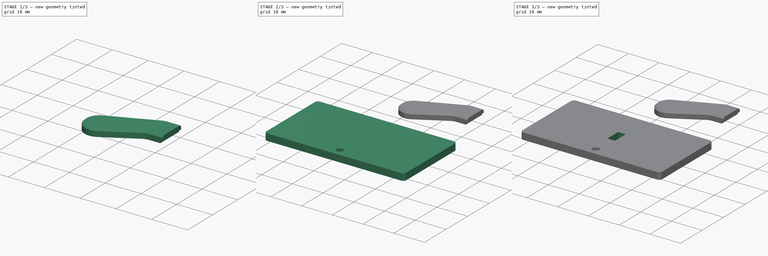
[diagram: build sequence overview — one tinted view per stage of 3, left to right]
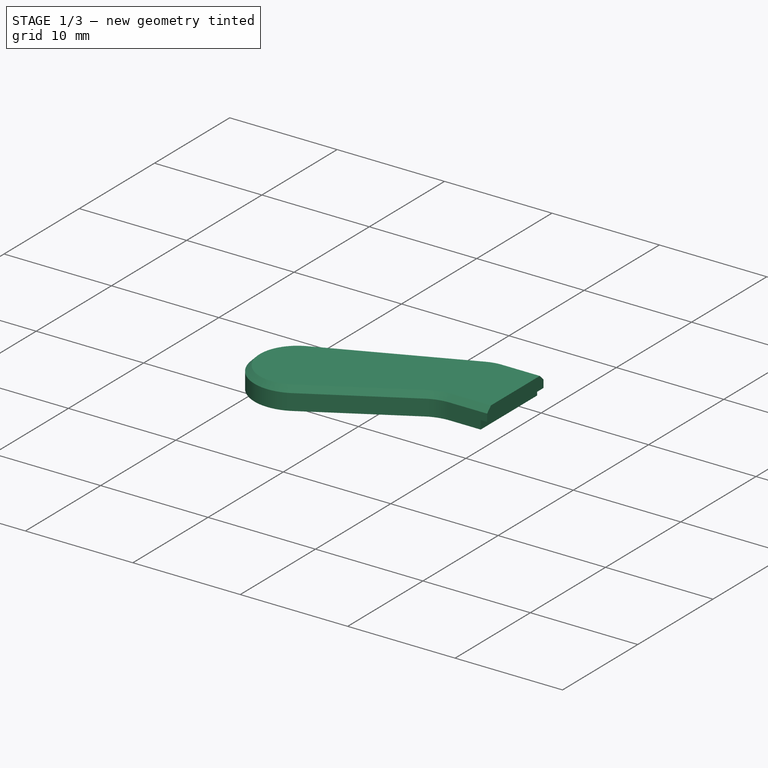
[diagram: stage 1 of 3 — iso view after this stage's code; geometry added in this stage tinted green]
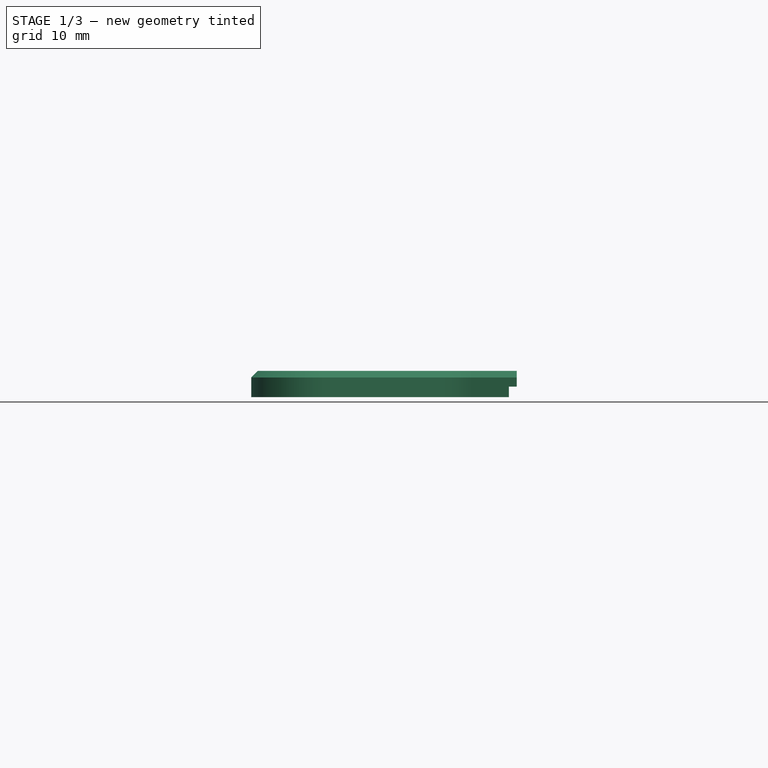
[diagram: stage 1 of 3 — front view after this stage's code; geometry added in this stage tinted green]
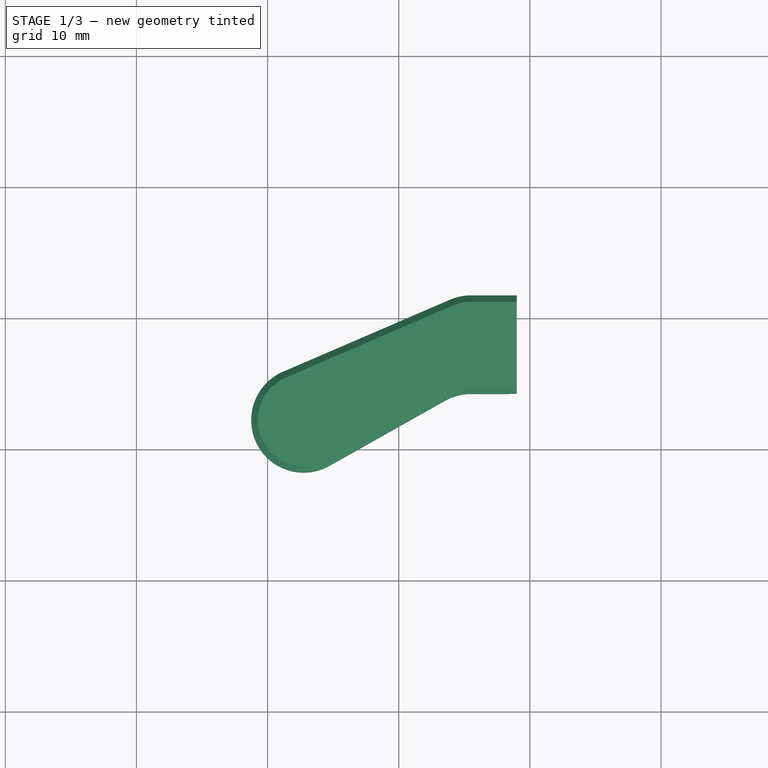
[diagram: stage 1 of 3 — top view after this stage's code; geometry added in this stage tinted green]
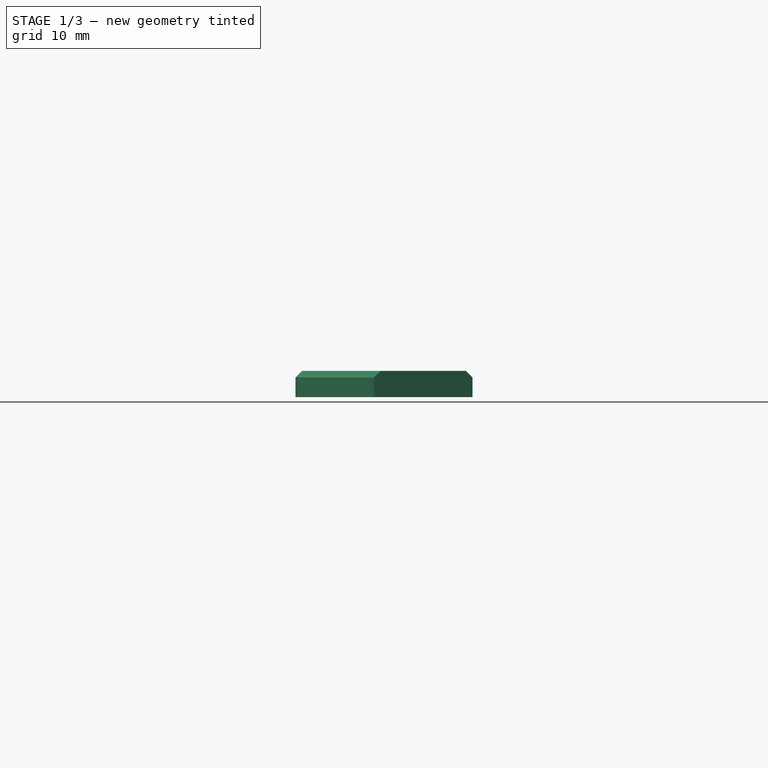
[diagram: stage 1 of 3 — right view after this stage's code; geometry added in this stage tinted green]
FCSTD DOCUMENT  (FreeCAD 0.21R33771 (Git))
Label: drawings
License: All rights reserved
LicenseURL: http://en.wikipedia.org/wiki/All_rights_reserved
objects: Sketcher::SketchObject×4, PartDesign::SubShapeBinder×4, PartDesign::Pad×4, PartDesign::Pocket×2, PartDesign::Body×2, PartDesign::Groove×1, PartDesign::Chamfer×1
note: 26 computed .brp shape members not serialized (recipe doc carries the construction recipe); baked Part::Feature solids carry a one-line shape summary decoded from their .brp

FEATURE [PartDesign::Body] Body  label="Cover"
  Group = -> [Binder003,Binder001,Binder002,Binder,Pad,Pad001,Pad002,Sketch001,Groove,Pocket]
  Origin = -> Origin
  Placement = pos=(0,0,0) rot=(1,0,0;3.14159rad)
  Tip = -> Pocket
FEATURE [Sketcher::SketchObject] Sketch002  label="CapOuterSketch"
  FullyConstrained = true
  MapMode = 5
  Support = -> [XY_Plane005]
  expr: .Constraints.X1 = <<OutlineSketch>>.Constraints.X1
  expr: .Constraints.Y1 = <<OutlineSketch>>.Constraints.H3 / 2
  sketch-geometry (9):
    g0: ArcOfCircle CenterX=22.75 CenterY=12.25 CenterZ=0 NormalX=0 NormalY=0 NormalZ=1 AngleXU=0 Radius=4 StartAngle=1.97805 EndAngle=5.22537
    g1: LineSegment StartX=39 StartY=21.75 StartZ=0 EndX=39 EndY=14.25 EndZ=0
    g2: LineSegment StartX=39 StartY=21.75 StartZ=0 EndX=35.5 EndY=21.75 EndZ=0
    g3: LineSegment StartX=39 StartY=14.25 StartZ=0 EndX=35.5 EndY=14.25 EndZ=0
    g4: GeomPoint X=39 Y=18 Z=0
    g5: LineSegment StartX=33.9156 StartY=21.4228 StartZ=0 EndX=21.1656 EndY=15.9228 EndZ=0
    g6: LineSegment StartX=33.5369 StartY=13.7351 StartZ=0 EndX=24.7131 EndY=8.76486 EndZ=0
    g7: ArcOfCircle CenterX=35.5 CenterY=17.75 CenterZ=0 NormalX=0 NormalY=0 NormalZ=1 AngleXU=0 Radius=4 StartAngle=1.5708 EndAngle=1.97805
    g8: ArcOfCircle CenterX=35.5 CenterY=10.25 CenterZ=0 NormalX=0 NormalY=0 NormalZ=1 AngleXU=0 Radius=4 StartAngle=1.5708 EndAngle=2.08378
  constraints (22):
    c: Diameter(g0) = 8  'D1'
    c: DistanceX(g0) = 22.75  'X1'
    c: DistanceY(g0) = 12.25  'Y1'
    c: Vertical(g1)
    c: Coincident(g1,g2)
    c: Horizontal(g2)
    c: Coincident(g1,g3)
    c: Horizontal(g3)
    c: Symmetric(g1,g1,g4)
    c: DistanceY(g4) = 18  'Y3'
    c: DistanceY(g1,g1) = 7.5  'H3'
    c: Tangent(g2,g7) = -1.5708
    c: Tangent(g5,g7) = -1.5708
    c: Tangent(g3,g8) = -1.5708
    c: Tangent(g6,g8) = -1.5708
    c: Vertical(g3,g2)
    c: Equal(g7,g8)
    c: Equal(g8,g0)
    c: DistanceX(g7) = 35.5  'X2'
    c: DistanceX(g1) = 39  'X3'
    c: Tangent(g0,g6) = 1.5708
    c: Tangent(g0,g5) = -1.5708
FEATURE [PartDesign::Pad] Pad003  label="OuterPad"
  Direction = (0,0,1)
  Length = 2
  Length2 = 10
  Profile = -> Sketch002
  ReferenceAxis = -> Sketch002 [N_Axis]
  Type = 0
FEATURE [Sketcher::SketchObject] Sketch003  label="CapInnerSketch"
  FullyConstrained = true
  MapMode = 5
  Support = -> [XY_Plane005]
  expr: .Constraints.X1 = <<CapOuterSketch>>.Constraints.X1
  expr: .Constraints.X2 = <<CapOuterSketch>>.Constraints.X2
  expr: .Constraints.Y1 = <<CapOuterSketch>>.Constraints.Y1
  expr: Constraints[20] = <<OutlineSketch>>.Constraints.H4
  expr: Constraints[21] = <<OutlineSketch>>.Constraints.W4
  expr: Constraints[47] = <<CapOuterSketch>>.Constraints.X3
  expr: Constraints[48] = <<CapOuterSketch>>.Constraints.Y3
  expr: Constraints[49] = <<CapOuterSketch>>.Constraints.H3
  sketch-geometry (21):
    g0: ArcOfCircle CenterX=22 CenterY=14.25 CenterZ=0 NormalX=0 NormalY=0 NormalZ=1 AngleXU=0 Radius=0.5 StartAngle=1.5708 EndAngle=3.14159
    g1: LineSegment StartX=22 StartY=14.75 StartZ=0 EndX=23.5 EndY=14.75 EndZ=0
    g2: ArcOfCircle CenterX=23.5 CenterY=14.25 CenterZ=0 NormalX=0 NormalY=0 NormalZ=1 AngleXU=0 Radius=0.5 StartAngle=0 EndAngle=1.5708
    g3: LineSegment StartX=24 StartY=14.25 StartZ=0 EndX=24 EndY=10.25 EndZ=0
    g4: ArcOfCircle CenterX=23.5 CenterY=10.25 CenterZ=0 NormalX=0 NormalY=0 NormalZ=1 AngleXU=0 Radius=0.5 StartAngle=4.71239 EndAngle=6.28319
    g5: LineSegment StartX=23.5 StartY=9.75 StartZ=0 EndX=22 EndY=9.75 EndZ=0
    g6: ArcOfCircle CenterX=22 CenterY=10.25 CenterZ=0 NormalX=0 NormalY=0 NormalZ=1 AngleXU=0 Radius=0.5 StartAngle=3.14159 EndAngle=4.71239
    g7: LineSegment StartX=21.5 StartY=10.25 StartZ=0 EndX=21.5 EndY=14.25 EndZ=0
    g8: GeomPoint X=21.5 Y=14.75 Z=0
    g9: GeomPoint X=24 Y=9.75 Z=0
    g10: GeomPoint X=22.75 Y=12.25 Z=0
    g11: LineSegment StartX=34.65 StartY=18.87 StartZ=0 EndX=34.65 EndY=16.17 EndZ=0
    g12: LineSegment StartX=34.65 StartY=16.17 StartZ=0 EndX=36.35 EndY=16.17 EndZ=0
    g13: LineSegment StartX=36.35 StartY=16.17 StartZ=0 EndX=36.35 EndY=18.87 EndZ=0
    g14: LineSegment StartX=36.35 StartY=18.87 StartZ=0 EndX=34.65 EndY=18.87 EndZ=0
    g15: GeomPoint X=35.5 Y=17.52 Z=0
    g16: LineSegment StartX=38.4 StartY=21.75 StartZ=0 EndX=38.4 EndY=14.25 EndZ=0
    g17: LineSegment StartX=38.4 StartY=14.25 StartZ=0 EndX=39.6 EndY=14.25 EndZ=0
    g18: LineSegment StartX=39.6 StartY=14.25 StartZ=0 EndX=39.6 EndY=21.75 EndZ=0
    g19: LineSegment StartX=39.6 StartY=21.75 StartZ=0 EndX=38.4 EndY=21.75 EndZ=0
    g20: GeomPoint X=39 Y=18 Z=0
  constraints (51):
    c: Tangent(g0,g1) = 1.5708
    c: Tangent(g1,g2) = 1.5708
    c: Tangent(g2,g3) = 1.5708
    c: Tangent(g3,g4) = 1.5708
    c: Tangent(g4,g5) = 1.5708
    c: Tangent(g5,g6) = 1.5708
    c: Tangent(g6,g7) = 1.5708
    c: Tangent(g7,g0) = 1.5708
    c: Horizontal(g1)
    c: Horizontal(g5)
    c: Vertical(g3)
    c: Vertical(g7)
    c: Equal(g0,g2)
    c: Equal(g2,g4)
    c: Equal(g4,g6)
    c: PointOnObject(g8,g1)
    c: PointOnObject(g8,g7)
    c: PointOnObject(g9,g3)
    c: PointOnObject(g9,g5)
    c: Symmetric(g0,g4,g10)
    c: DistanceY(g4,g1) = 5
    c: DistanceX(g6,g3) = 2.5
    c: DistanceX(g10) = 22.75  'X1'
    c: DistanceY(g10) = 12.25  'Y1'
    c: Radius(g2) = 0.5
    c: Coincident(g11,g12)
    c: Coincident(g12,g13)
    c: Coincident(g13,g14)
    c: Coincident(g14,g11)
    c: Horizontal(g12)
    c: Horizontal(g14)
    c: Vertical(g11)
    c: Vertical(g13)
    c: Symmetric(g12,g11,g15)
    c: DistanceX(g12,g12) = 1.7
    c: DistanceY(g13,g13) = 2.7
    c: DistanceX(g15) = 35.5  'X2'
    c: DistanceY(g15) = 17.52  'Y2'
    c: Coincident(g16,g17)
    c: Coincident(g17,g18)
    c: Coincident(g18,g19)
    c: Coincident(g19,g16)
    c: Horizontal(g17)
    c: Horizontal(g19)
    c: Vertical(g16)
    c: Vertical(g18)
    c: Symmetric(g17,g16,g20)
    c: DistanceX(g20) = 39
    c: DistanceY(g20) = 18
    c: DistanceY(g18,g18) = 7.5
    c: DistanceX(g17,g17) = 1.2
FEATURE [PartDesign::Pocket] Pocket001  label="InnerPocket"
  BaseFeature = -> Pad003
  Direction = (0,0,-1)
  Length = 0.8
  Length2 = 5
  Profile = -> Sketch003
  ReferenceAxis = -> Sketch003 [N_Axis]
  Reversed = true
  Type = 0
FEATURE [PartDesign::Chamfer] Chamfer  label="CapChamfer"
  Angle = 45
  Base = -> Pocket001 [Edge5]
  BaseFeature = -> Pocket001
  ChamferType = 0
  FlipDirection = false
  Size = 0.5
  Size2 = 1
  SupportTransform = false
  UseAllEdges = false
FEATURE [PartDesign::Body] Body001  label="Cap"
  Group = -> [Sketch002,Pad003,Sketch003,Pocket001,Chamfer]
  Origin = -> Origin005
  Placement = pos=(0,0,0) rot=(1,0,0;3.14159rad)
  Tip = -> Chamfer
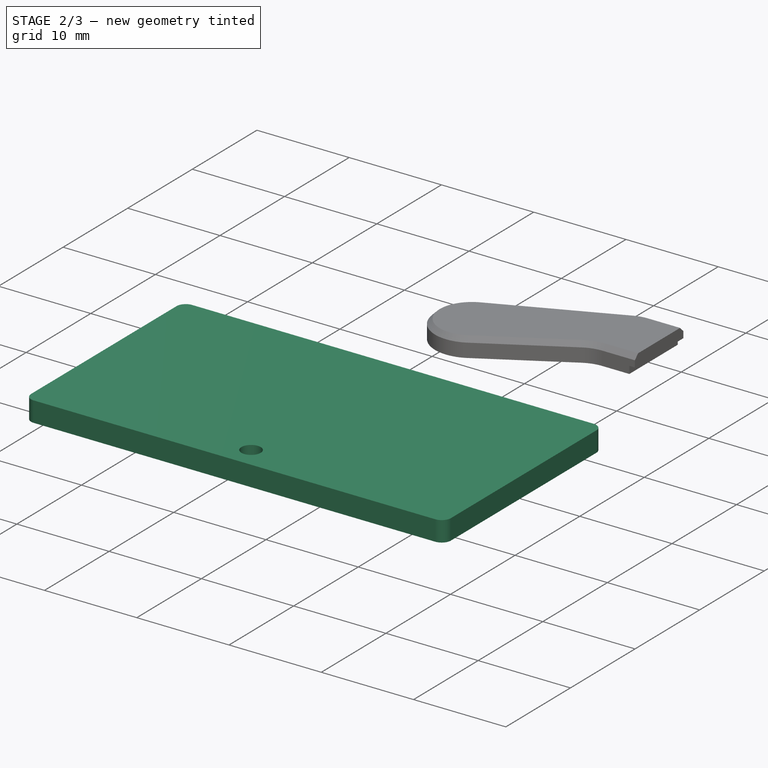
[diagram: stage 2 of 3 — iso view after this stage's code; geometry added in this stage tinted green]
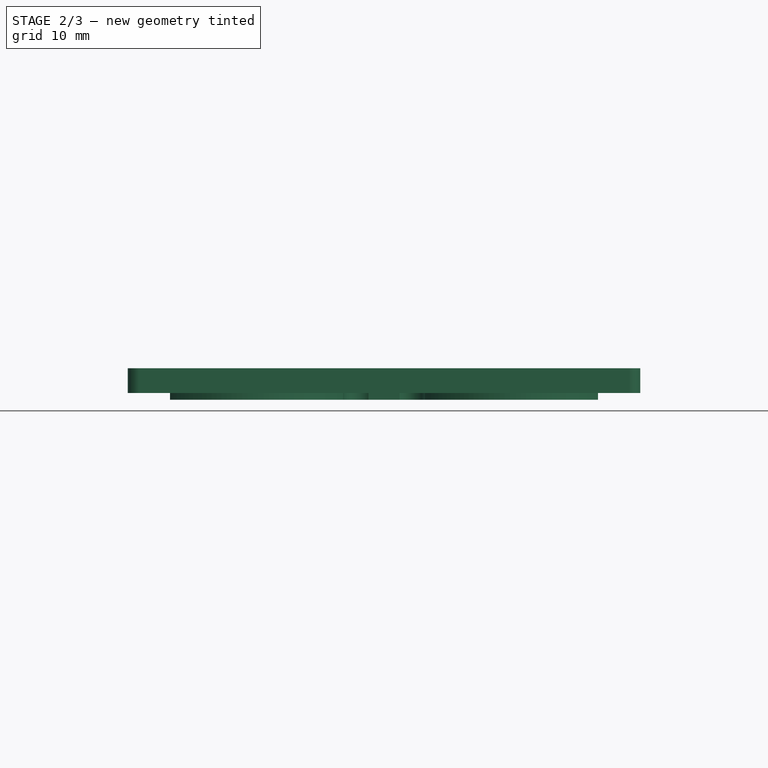
[diagram: stage 2 of 3 — front view after this stage's code; geometry added in this stage tinted green]
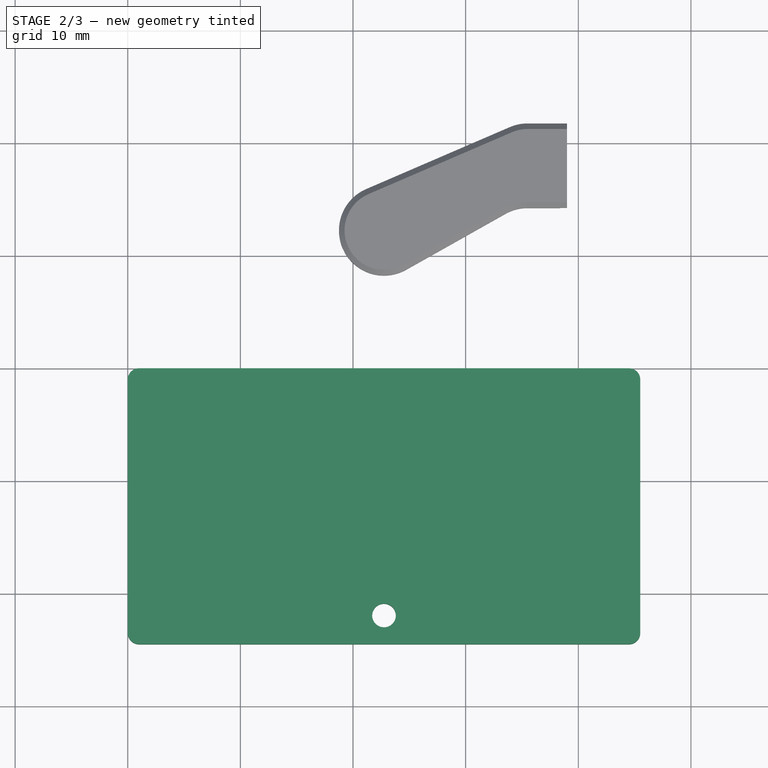
[diagram: stage 2 of 3 — top view after this stage's code; geometry added in this stage tinted green]
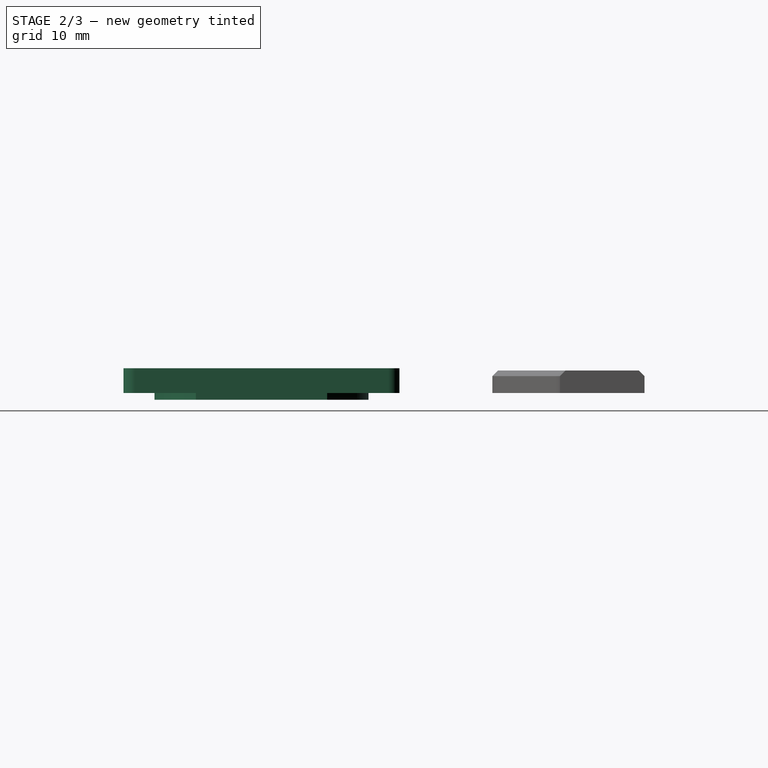
[diagram: stage 2 of 3 — right view after this stage's code; geometry added in this stage tinted green]
FEATURE [Sketcher::SketchObject] Sketch  label="OutlineSketch"
  FullyConstrained = true
  MapMode = 5
  sketch-geometry (60):
    g0: LineSegment StartX=3.75 StartY=2.75 StartZ=0 EndX=41.75 EndY=2.75 EndZ=0
    g1: LineSegment StartX=41.75 StartY=2.75 StartZ=0 EndX=41.75 EndY=21.75 EndZ=0
    g2: LineSegment StartX=41.75 StartY=21.75 StartZ=0 EndX=3.75 EndY=21.75 EndZ=0
    g3: LineSegment StartX=3.75 StartY=21.75 StartZ=0 EndX=3.75 EndY=2.75 EndZ=0
    g4: ArcOfCircle CenterX=11.25 CenterY=12.25 CenterZ=0 NormalX=0 NormalY=0 NormalZ=1 AngleXU=0 Radius=9.5 StartAngle=0.593942 EndAngle=2.48075
    g5: ArcOfCircle CenterX=11.25 CenterY=12.25 CenterZ=0 NormalX=0 NormalY=0 NormalZ=1 AngleXU=0 Radius=9.5 StartAngle=3.80244 EndAngle=5.68924
    g6: LineSegment StartX=21.3789 StartY=16.25 StartZ=0 EndX=24.1211 EndY=16.25 EndZ=0
    g7: LineSegment StartX=21.3789 StartY=8.25 StartZ=0 EndX=24.1211 EndY=8.25 EndZ=0
    g8: ArcOfCircle CenterX=34.25 CenterY=12.25 CenterZ=0 NormalX=0 NormalY=0 NormalZ=1 AngleXU=0 Radius=9.5 StartAngle=0.660845 EndAngle=2.54765
    g9: ArcOfCircle CenterX=34.25 CenterY=12.25 CenterZ=0 NormalX=0 NormalY=0 NormalZ=1 AngleXU=0 Radius=9.5 StartAngle=3.73553 EndAngle=5.62234
    g10: LineSegment StartX=41.75 StartY=18.081 StartZ=0 EndX=41.75 EndY=6.41905 EndZ=0
    g11: LineSegment StartX=3.75 StartY=18.081 StartZ=0 EndX=3.75 EndY=6.41905 EndZ=0
    g12: ArcOfCircle CenterX=11.25 CenterY=12.25 CenterZ=0 NormalX=0 NormalY=0 NormalZ=1 AngleXU=0 Radius=9.5 StartAngle=5.84858 EndAngle=6.71779
    g13: ArcOfCircle CenterX=34.25 CenterY=12.25 CenterZ=0 NormalX=0 NormalY=0 NormalZ=1 AngleXU=0 Radius=9.5 StartAngle=2.70699 EndAngle=3.5762
    g14: LineSegment StartX=1 StartY=0 StartZ=0 EndX=44.5 EndY=0 EndZ=0
    g15: LineSegment StartX=45.5 StartY=1 StartZ=0 EndX=45.5 EndY=23.5 EndZ=0
    g16: LineSegment StartX=44.5 StartY=24.5 StartZ=0 EndX=1 EndY=24.5 EndZ=0
    g17: LineSegment StartX=0 StartY=23.5 StartZ=0 EndX=0 EndY=1 EndZ=0
    g18: ArcOfCircle CenterX=1 CenterY=1 CenterZ=0 NormalX=0 NormalY=0 NormalZ=1 AngleXU=0 Radius=1 StartAngle=3.14159 EndAngle=4.71239
    g19: ArcOfCircle CenterX=1 CenterY=23.5 CenterZ=0 NormalX=0 NormalY=0 NormalZ=1 AngleXU=0 Radius=1 StartAngle=1.5708 EndAngle=3.14159
    g20: ArcOfCircle CenterX=44.5 CenterY=23.5 CenterZ=0 NormalX=0 NormalY=0 NormalZ=1 AngleXU=0 Radius=1 StartAngle=-9e-16 EndAngle=1.5708
    g21: ArcOfCircle CenterX=44.5 CenterY=1 CenterZ=0 NormalX=0 NormalY=0 NormalZ=1 AngleXU=0 Radius=1 StartAngle=4.71239 EndAngle=6.28319
    g22: GeomPoint X=22.75 Y=12.25 Z=0
    g23: LineSegment StartX=21.3789 StartY=16.25 StartZ=0 EndX=19.8668 EndY=16.25 EndZ=0
    g24: ArcOfCircle CenterX=11.25 CenterY=12.25 CenterZ=0 NormalX=0 NormalY=0 NormalZ=1 AngleXU=0 Radius=9.5 StartAngle=0.434606 EndAngle=0.593942
    g25: LineSegment StartX=25.6332 StartY=16.25 StartZ=0 EndX=24.1211 EndY=16.25 EndZ=0
    g26: LineSegment StartX=21.3789 StartY=8.25 StartZ=0 EndX=19.8668 EndY=8.25 EndZ=0
    g27: LineSegment StartX=24.1211 StartY=8.25 StartZ=0 EndX=25.6332 EndY=8.25 EndZ=0
    g28: ArcOfCircle CenterX=34.25 CenterY=12.25 CenterZ=0 NormalX=0 NormalY=0 NormalZ=1 AngleXU=0 Radius=9.5 StartAngle=2.54765 EndAngle=2.70699
    g29: ArcOfCircle CenterX=34.25 CenterY=12.25 CenterZ=0 NormalX=0 NormalY=0 NormalZ=1 AngleXU=0 Radius=9.5 StartAngle=3.5762 EndAngle=3.73553
    g30: ArcOfCircle CenterX=11.25 CenterY=12.25 CenterZ=0 NormalX=0 NormalY=0 NormalZ=1 AngleXU=0 Radius=9.5 StartAngle=5.68924 EndAngle=5.84858
    g31: ArcOfCircle CenterX=20.6229 CenterY=6.95447 CenterZ=0 NormalX=0 NormalY=0 NormalZ=1 AngleXU=0 Radius=1.5 StartAngle=1.04254 EndAngle=3.15558
    g32: ArcOfCircle CenterX=24.8771 CenterY=6.95447 CenterZ=0 NormalX=0 NormalY=0 NormalZ=1 AngleXU=0 Radius=1.5 StartAngle=6.2692 EndAngle=8.38224
    g33: ArcOfCircle CenterX=24.8771 CenterY=17.5455 CenterZ=0 NormalX=0 NormalY=0 NormalZ=1 AngleXU=0 Radius=1.5 StartAngle=4.18413 EndAngle=6.29717
    g34: ArcOfCircle CenterX=20.6229 CenterY=17.5455 CenterZ=0 NormalX=0 NormalY=0 NormalZ=1 AngleXU=0 Radius=1.5 StartAngle=3.12761 EndAngle=5.24065
    g35: LineSegment StartX=19.123 StartY=17.5665 StartZ=0 EndX=19.8668 EndY=16.25 EndZ=0
    g36: LineSegment StartX=25.6332 StartY=16.25 StartZ=0 EndX=26.377 EndY=17.5665 EndZ=0
    g37: LineSegment StartX=25.6332 StartY=8.25 StartZ=0 EndX=26.377 EndY=6.93349 EndZ=0
    g38: LineSegment StartX=19.8668 StartY=8.25 StartZ=0 EndX=19.123 EndY=6.93349 EndZ=0
    g39: Circle CenterX=22.75 CenterY=21.95 CenterZ=0 NormalX=0 NormalY=0 NormalZ=1 AngleXU=0 Radius=1.05
    g40: Circle CenterX=22.75 CenterY=21.95 CenterZ=0 NormalX=0 NormalY=0 NormalZ=1 AngleXU=0 Radius=1.75
    g41: LineSegment StartX=21.25 StartY=1.1 StartZ=0 EndX=24.25 EndY=1.1 EndZ=0
    g42: LineSegment StartX=24.25 StartY=1.1 StartZ=0 EndX=24.25 EndY=-1.7 EndZ=0
    g43: LineSegment StartX=24.25 StartY=-1.7 StartZ=0 EndX=21.25 EndY=-1.7 EndZ=0
    g44: LineSegment StartX=21.25 StartY=-1.7 StartZ=0 EndX=21.25 EndY=1.1 EndZ=0
    g45: GeomPoint X=22.75 Y=1.1 Z=0
    g46: LineSegment StartX=4.75 StartY=1.1 StartZ=0 EndX=7.75 EndY=1.1 EndZ=0
    g47: LineSegment StartX=7.75 StartY=1.1 StartZ=0 EndX=7.75 EndY=-1.7 EndZ=0
    g48: LineSegment StartX=7.75 StartY=-1.7 StartZ=0 EndX=4.75 EndY=-1.7 EndZ=0
    g49: LineSegment StartX=4.75 StartY=-1.7 StartZ=0 EndX=4.75 EndY=1.1 EndZ=0
    g50: LineSegment StartX=37.75 StartY=1.1 StartZ=0 EndX=40.75 EndY=1.1 EndZ=0
    g51: LineSegment StartX=40.75 StartY=1.1 StartZ=0 EndX=40.75 EndY=-1.7 EndZ=0
    g52: LineSegment StartX=40.75 StartY=-1.7 StartZ=0 EndX=37.75 EndY=-1.7 EndZ=0
    g53: LineSegment StartX=37.75 StartY=-1.7 StartZ=0 EndX=37.75 EndY=1.1 EndZ=0
    g54: LineSegment StartX=21.25 StartY=1.1 StartZ=0 EndX=7.75 EndY=1.1 EndZ=0
    g55: LineSegment StartX=24.25 StartY=1.1 StartZ=0 EndX=37.75 EndY=1.1 EndZ=0
    g56: LineSegment StartX=21.5 StartY=14.75 StartZ=0 EndX=24 EndY=14.75 EndZ=0
    g57: LineSegment StartX=24 StartY=14.75 StartZ=0 EndX=24 EndY=9.75 EndZ=0
    g58: LineSegment StartX=24 StartY=9.75 StartZ=0 EndX=21.5 EndY=9.75 EndZ=0
    g59: LineSegment StartX=21.5 StartY=9.75 StartZ=0 EndX=21.5 EndY=14.75 EndZ=0
  constraints (165):
    c: Coincident(g0,g1)
    c: Coincident(g1,g2)
    c: Coincident(g2,g3)
    c: Coincident(g3,g0)
    c: Horizontal(g0)
    c: Horizontal(g2)
    c: Vertical(g1)
    c: Vertical(g3)
    c: DistanceX(g2,g2) = 38  'W1'
    c: DistanceY(g1,g1) = 19  'H1'
    c: Coincident(g5,g4)
    c: PointOnObject(g5,g3)
    c: Horizontal(g6)
    c: Horizontal(g7)
    c: PointOnObject(g8,g1)
    c: Coincident(g9,g8)
    c: PointOnObject(g9,g1)
    c: Coincident(g10,g8)
    c: Coincident(g10,g9)
    c: Horizontal(g8,g4)
    c: Equal(g8,g4)
    c: Tangent(g8,g2)
    c: Tangent(g9,g0)
    c: DistanceX(g4,g8) = 23  'W2'
    c: PointOnObject(g4,g3)
    c: Coincident(g11,g4)
    c: Coincident(g11,g5)
    c: Horizontal(g4,g8)
    c: Coincident(g12,g4)
    c: Coincident(g13,g8)
    c: DistanceY(g12,g12) = 8  'H2'
    c: Horizontal(g14)
    c: Horizontal(g16)
    c: Vertical(g15)
    c: Vertical(g17)
    c: Tangent(g14,g18) = -1.5708
    c: Tangent(g17,g18) = -1.5708
    c: Tangent(g17,g19) = -1.5708
    c: Tangent(g16,g19) = -1.5708
    c: Tangent(g16,g20) = -1.5708
    c: Tangent(g15,g20) = -1.5708
    c: Tangent(g15,g21) = -1.5708
    c: Tangent(g14,g21) = -1.5708
    c: Equal(g21,g20)
    c: Equal(g20,g19)
    c: Equal(g19,g18)
    c: Radius(g21) = 1  'R1'
    c: PointOnObject(g14,g-1)
    c: PointOnObject(g17,g-2)
    c: Symmetric(g19,g21,g22)
    c: DistanceY(g14,g16) = 24.5  'H3'
    c: DistanceX(g17,g15) = 45.5  'W3'
    c: Coincident(g23,g6)
    c: Coincident(g23,g12)
    c: Horizontal(g23)
    c: Coincident(g24,g4)
    c: Coincident(g24,g4)
    c: Coincident(g24,g12)
    c: Coincident(g25,g13)
    c: Coincident(g25,g6)
    c: Horizontal(g25)
    c: Coincident(g26,g7)
    c: Coincident(g26,g12)
    c: Horizontal(g26)
    c: Coincident(g27,g7)
    c: Coincident(g27,g13)
    c: Horizontal(g27)
    c: Coincident(g28,g8)
    c: Coincident(g28,g13)
    c: Coincident(g28,g8)
    c: Coincident(g29,g8)
    c: Coincident(g29,g9)
    c: Coincident(g29,g13)
    c: Coincident(g30,g4)
    c: Coincident(g30,g12)
    c: Coincident(g30,g5)
    c: Coincident(g31,g5)
    c: Coincident(g31,g7)
    c: Coincident(g32,g7)
    c: Coincident(g32,g9)
    c: Coincident(g33,g8)
    c: Coincident(g34,g4)
    c: Coincident(g34,g6)
    c: Coincident(g6,g33)
    c: PointOnObject(g13,g33)
    c: PointOnObject(g12,g34)
    c: PointOnObject(g13,g32)
    c: PointOnObject(g12,g31)
    c: Equal(g33,g34)
    c: Equal(g34,g32)
    c: Equal(g32,g31)
    c: Radius(g33) = 1.5
    c: Coincident(g35,g4)
    c: Coincident(g35,g12)
    c: Equal(g23,g35)
    c: Coincident(g36,g13)
    c: Coincident(g36,g8)
    c: Coincident(g37,g13)
    c: Coincident(g37,g9)
    c: Coincident(g38,g12)
    c: Coincident(g38,g5)
    c: Equal(g38,g26)
    c: Equal(g27,g37)
    c: Equal(g25,g36)
    c: Symmetric(g12,g13,g22)
    c: Vertical(g39,g22)
    c: DistanceY(g22,g39) = 9.7
    c: Diameter(g39) = 2.1  'D1'
    c: Horizontal(g22,g8)
    c: Coincident(g40,g39)
    c: Diameter(g40) = 3.5  'D2'
    c: Coincident(g41,g42)
    c: Coincident(g42,g43)
    c: Coincident(g43,g44)
    c: Coincident(g44,g41)
    c: Horizontal(g41)
    c: Horizontal(g43)
    c: Vertical(g42)
    c: Vertical(g44)
    c: Symmetric(g41,g41,g45)
    c: Vertical(g45,g22)
    c: DistanceX(g43,g43) = 3
    c: DistanceY(g42,g14) = 1.7
    c: DistanceY(g14,g41) = 1.1
    c: Coincident(g46,g47)
    c: Coincident(g47,g48)
    c: Coincident(g48,g49)
    c: Coincident(g49,g46)
    c: Horizontal(g46)
    c: Horizontal(g48)
    c: Vertical(g47)
    c: Vertical(g49)
    c: Coincident(g50,g51)
    c: Coincident(g51,g52)
    c: Coincident(g52,g53)
    c: Coincident(g53,g50)
    c: Horizontal(g50)
    c: Horizontal(g52)
    c: Vertical(g51)
    c: Vertical(g53)
    c: Horizontal(g50,g41)
    c: Horizontal(g41,g46)
    c: Horizontal(g47,g43)
    c: Horizontal(g42,g52)
    c: Equal(g46,g41)
    c: Equal(g41,g50)
    c: Coincident(g54,g41)
    c: Coincident(g54,g46)
    c: Coincident(g55,g41)
    c: Coincident(g55,g50)
    c: Equal(g54,g55)
    c: DistanceX(g48,g42) = 19.5
    c: DistanceX(g39) = 22.75  'X1'
    c: DistanceY(g39) = 21.95  'Y1'
    c: Coincident(g56,g57)
    c: Coincident(g57,g58)
    c: Coincident(g58,g59)
    c: Coincident(g59,g56)
    c: Horizontal(g56)
    c: Horizontal(g58)
    c: Vertical(g57)
    c: Vertical(g59)
    c: Symmetric(g56,g58,g22)
    c: DistanceX(g56,g56) = 2.5  'W4'
    c: DistanceY(g57,g57) = 5  'H4'
FEATURE [PartDesign::SubShapeBinder] Binder001  label="BottomBinder"
  BindCopyOnChange = 0
  BindMode = 0
  ClaimChildren = false
  Context = -> Body [Binder001.]
  Fuse = false
  MakeFace = true
  OffsetFill = false
  OffsetIntersection = false
  OffsetJoinType = 0
  OffsetOpenResult = false
  PartialLoad = false
  Relative = true
  Support = -> [Sketch[Edge2,Edge1,Edge12,Edge11,Edge10,Edge9,Edge8,Edge7]]
  _Version = 2
FEATURE [PartDesign::SubShapeBinder] Binder002  label="LatchBinder"
  BindCopyOnChange = 0
  BindMode = 0
  ClaimChildren = false
  Context = -> Body [Binder002.]
  Fuse = false
  MakeFace = true
  OffsetFill = false
  OffsetIntersection = false
  OffsetJoinType = 0
  OffsetOpenResult = false
  PartialLoad = false
  Relative = true
  Support = -> [Sketch[Edge30,Edge27,Edge28,Edge29,Edge26,Edge23,Edge24,Edge25]]
  _Version = 2
FEATURE [Sketcher::SketchObject] Sketch001  label="SinkSketch"
  AttachmentOffset = pos=(22.75,0,-21.95) rot=(0,0,1;0rad)
  FullyConstrained = true
  MapMode = 5
  Placement = pos=(22.75,21.95,4.9e-15) rot=(1,0,0;1.5708rad)
  Support = -> [XZ_Plane]
  expr: .AttachmentOffset.Base.x = <<OutlineSketch>>.Constraints.X1
  expr: .AttachmentOffset.Base.z = -<<OutlineSketch>>.Constraints.Y1
  expr: Constraints[14] = <<TopPad>>.Length
  expr: Constraints[1] = <<OutlineSketch>>.Constraints.D2 / 2
  expr: Constraints[8] = <<OutlineSketch>>.Constraints.D1 / 2
  sketch-geometry (6):
    g0: LineSegment StartX=0 StartY=0 StartZ=0 EndX=0 EndY=2.2 EndZ=0
    g1: LineSegment StartX=1.05 StartY=0.4 StartZ=0 EndX=1.05 EndY=0 EndZ=0
    g2: LineSegment StartX=1.05 StartY=0 StartZ=0 EndX=0 EndY=0 EndZ=0
    g3: LineSegment StartX=1.75 StartY=1.1 StartZ=0 EndX=1.05 EndY=0.4 EndZ=0
    g4: LineSegment StartX=1.75 StartY=1.1 StartZ=0 EndX=1.75 EndY=2.2 EndZ=0
    g5: LineSegment StartX=1.75 StartY=2.2 StartZ=0 EndX=0 EndY=2.2 EndZ=0
  constraints (17):
    c: PointOnObject(g0,g-2)
    c: DistanceX(g0,g3) = 1.75
    c: PointOnObject(g1,g-1)
    c: Vertical(g1)
    c: Coincident(g1,g2)
    c: Coincident(g2,g-1)
    c: Coincident(g3,g1)
    c: Coincident(g0,g2)
    c: DistanceX(g2,g2) = 1.05
    c: Coincident(g3,g4)
    c: Vertical(g4)
    c: Coincident(g4,g5)
    c: Coincident(g5,g0)
    c: Horizontal(g5)
    c: DistanceY(g0) = 2.2
    c: Angle(g5,g3) = 0.785398
    c: DistanceY(g1) = 0.4
FEATURE [PartDesign::SubShapeBinder] Binder003  label="TopBinder"
  BindCopyOnChange = 0
  BindMode = 0
  ClaimChildren = false
  Context = -> Body [Binder003.]
  Fuse = false
  MakeFace = true
  OffsetFill = false
  OffsetIntersection = false
  OffsetJoinType = 0
  OffsetOpenResult = false
  PartialLoad = false
  Relative = true
  Support = -> [Sketch[Edge18,Edge17,Edge16,Edge15,Edge14,Edge13,Edge20,Edge19]]
  _Version = 2
FEATURE [PartDesign::Pad] Pad  label="TopPad"
  Direction = (0,0,1)
  Length = 2.2
  Length2 = 10
  Profile = -> Binder003
  Type = 0
FEATURE [PartDesign::Pad] Pad001  label="BottomPad"
  BaseFeature = -> Pad
  Direction = (0,0,1)
  Length = 0.6
  Length2 = 10
  Profile = -> Binder001
  Reversed = true
  Type = 0
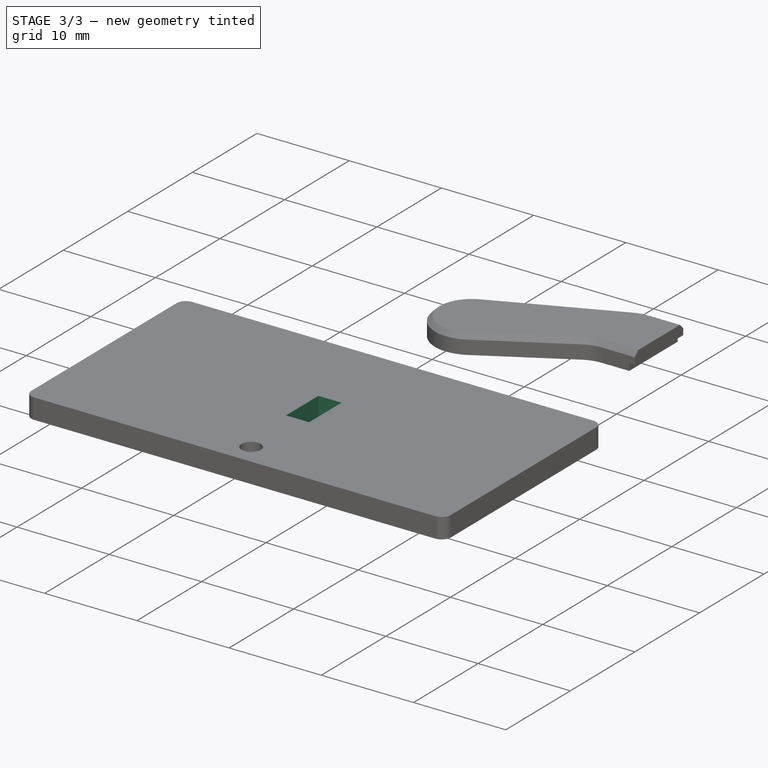
[diagram: stage 3 of 3 — iso view after this stage's code; geometry added in this stage tinted green]
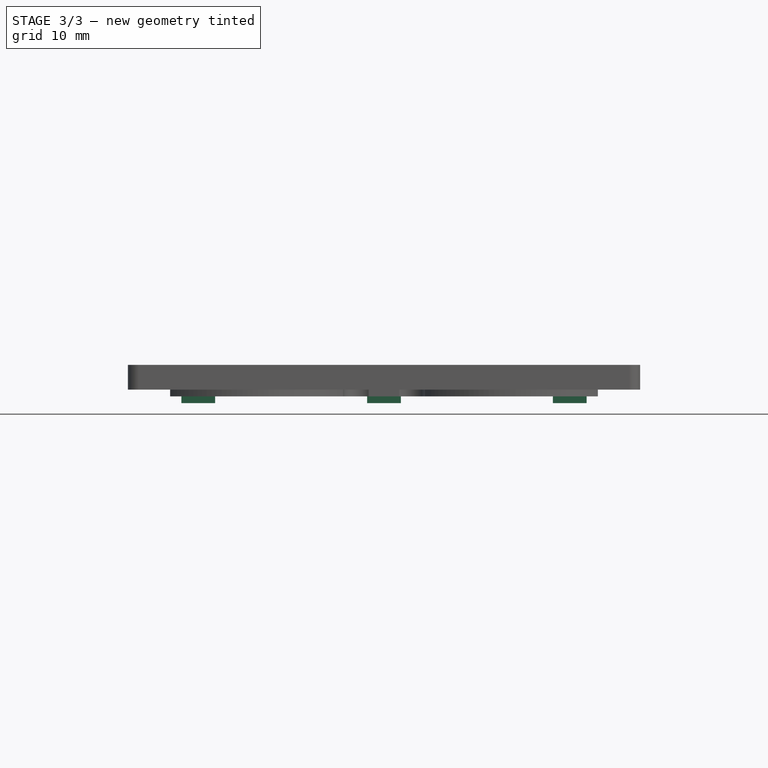
[diagram: stage 3 of 3 — front view after this stage's code; geometry added in this stage tinted green]
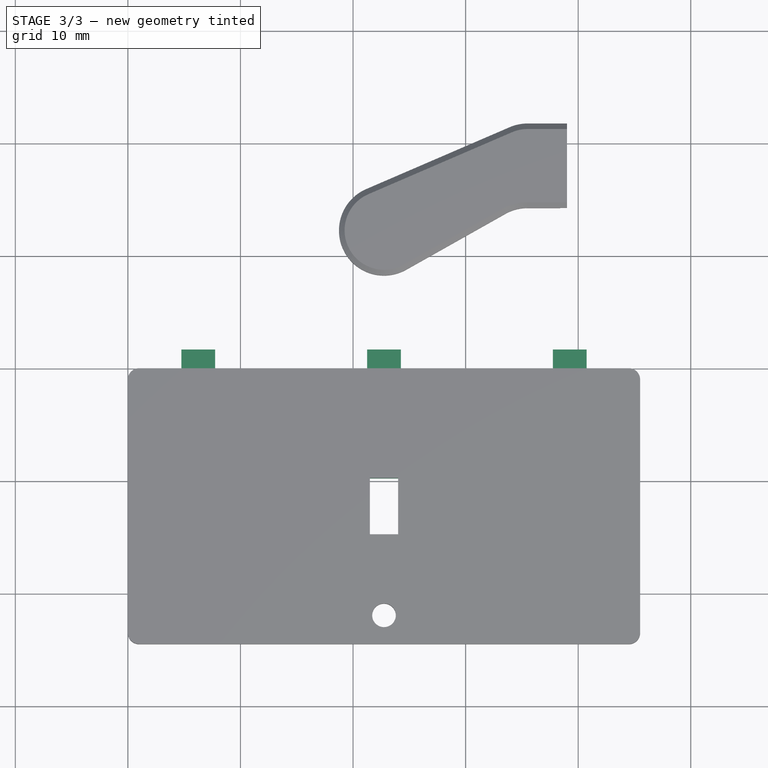
[diagram: stage 3 of 3 — top view after this stage's code; geometry added in this stage tinted green]
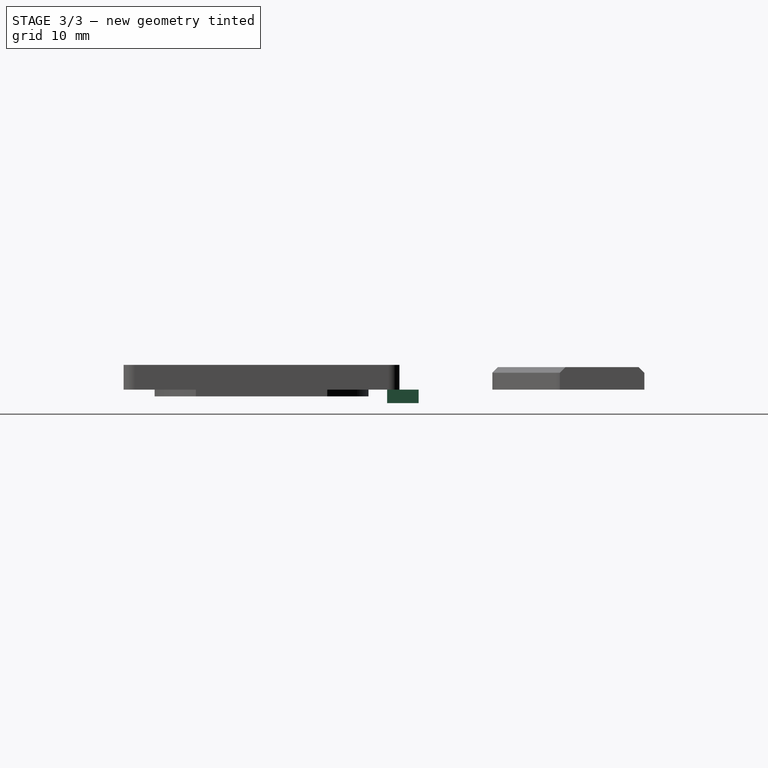
[diagram: stage 3 of 3 — right view after this stage's code; geometry added in this stage tinted green]
FEATURE [PartDesign::Pad] Pad002  label="LatchPad"
  BaseFeature = -> Pad001
  Direction = (0,0,1)
  Length = 1.2
  Length2 = 10
  Profile = -> Binder002
  Reversed = true
  Type = 0
FEATURE [PartDesign::Groove] Groove  label="SinkGroove"
  Angle = 360
  Axis = (0,-2e-16,1)
  Base = (22.75,21.95,4.9e-15)
  BaseFeature = -> Pad002
  Profile = -> Sketch001
  ReferenceAxis = -> Sketch001 [V_Axis]
FEATURE [PartDesign::SubShapeBinder] Binder  label="PinBinder"
  BindCopyOnChange = 0
  BindMode = 0
  ClaimChildren = false
  Context = -> Body [Binder.]
  Fuse = false
  MakeFace = true
  OffsetFill = false
  OffsetIntersection = false
  OffsetJoinType = 0
  OffsetOpenResult = false
  PartialLoad = false
  Relative = true
  Support = -> [Sketch[Edge35,Edge38,Edge36,Edge37]]
  _Version = 2
FEATURE [PartDesign::Pocket] Pocket  label="PinPocket"
  BaseFeature = -> Groove
  Direction = (0,0,-1)
  Length = 5
  Length2 = 5
  Midplane = true
  Profile = -> Binder
  Type = 1
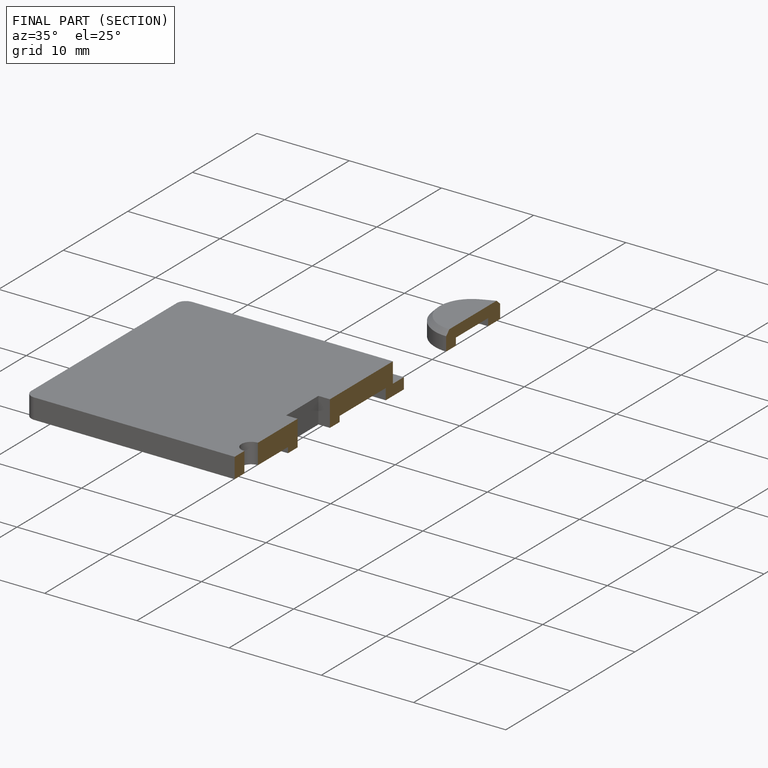
[diagram: finished part — half-section view (interior)]
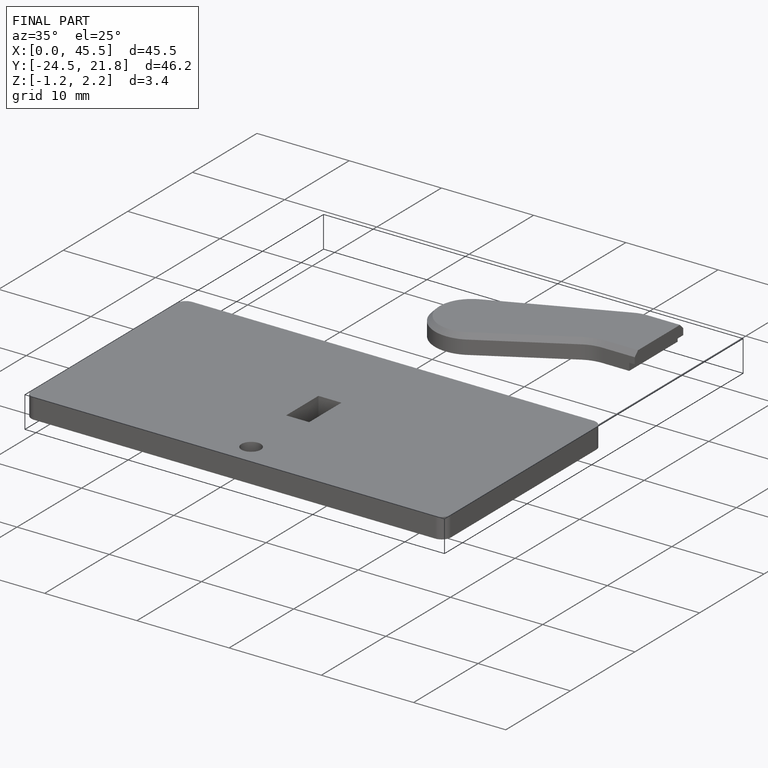
[diagram: finished part — iso view with bounding-box wireframe]
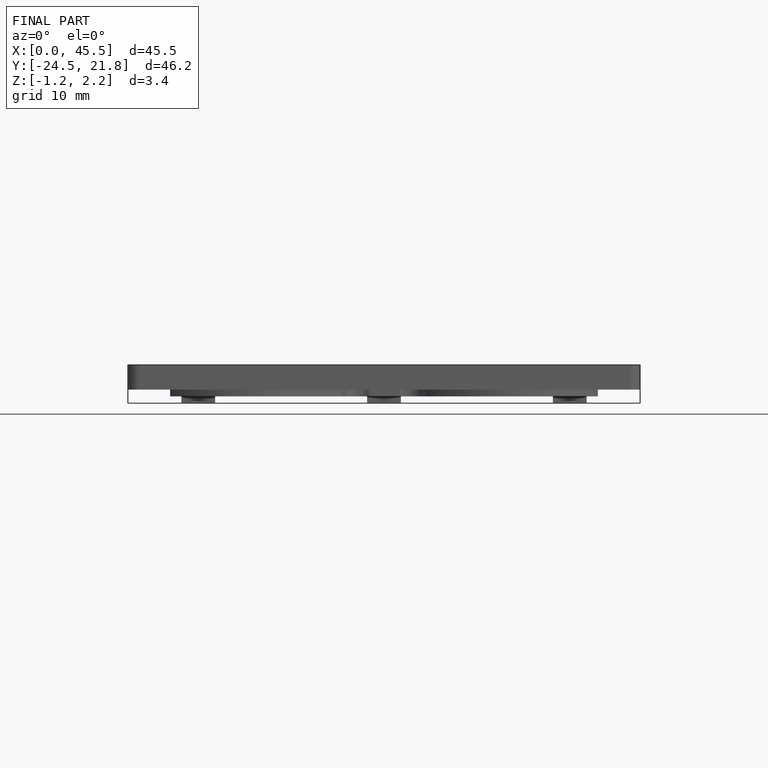
[diagram: finished part — front view with bounding-box wireframe]
